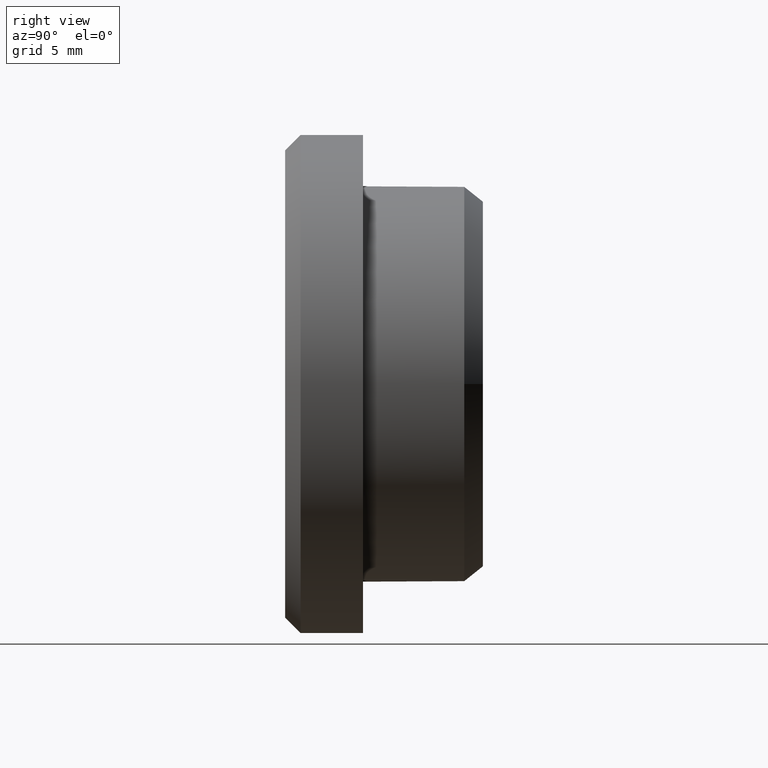
[diagram: clean part render]
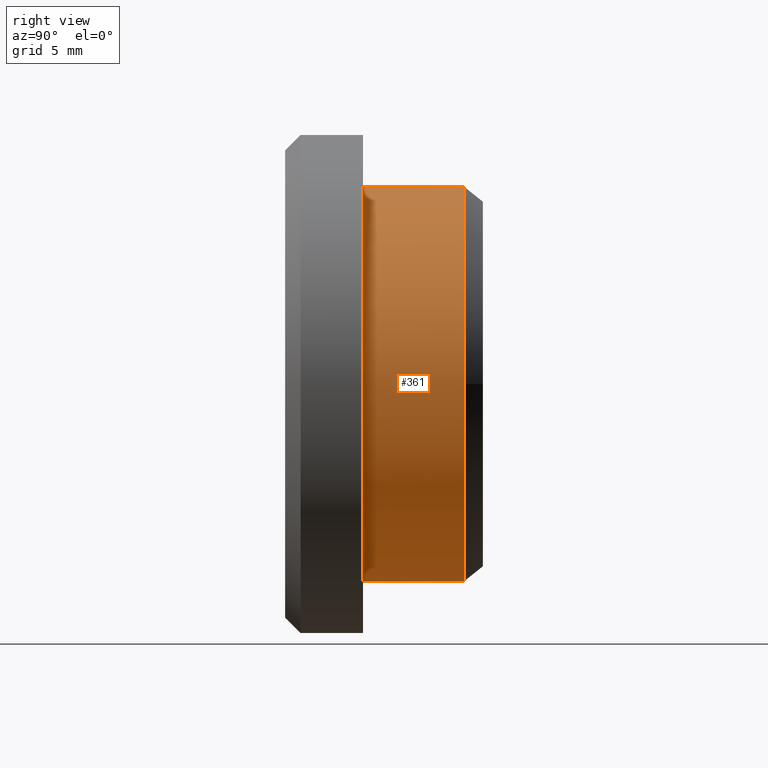
[diagram: same view with one face highlighted and labeled with its STEP entity id]
A machine part, right view. The second image highlights one B-rep face of the part: STEP entity #361.
In plain terms, the highlighted cylindrical surface (bore or boss wall) has radius 12.7 mm, axis along (-0, 1, 0).
Its self-contained STEP definition (entity closure, byte-faithful):
#42 = VERTEX_POINT ( 'NONE', #236 ) ;
#50 = CYLINDRICAL_SURFACE ( 'NONE', #266, 12.69999999999999929 ) ;
#79 = CIRCLE ( 'NONE', #85, 12.69999999999999929 ) ;
#80 = CARTESIAN_POINT ( 'NONE',  ( 1.707404996040190150E-16, -12.40000000000007674, 0.000000000000000000 ) ) ;
#85 = AXIS2_PLACEMENT_3D ( 'NONE', #110, #200, #288 ) ;
#94 = EDGE_LOOP ( 'NONE', ( #149 ) ) ;
#96 = DIRECTION ( 'NONE',  ( -1.000000000000000000, 0.000000000000000000, 0.000000000000000000 ) ) ;
#110 = CARTESIAN_POINT ( 'NONE',  ( -2.219626494852238640E-16, -0.8999999999999286349, 0.000000000000000000 ) ) ;
#125 = CARTESIAN_POINT ( 'NONE',  ( -6.259272319258516522E-31, -7.399999999999984368, 0.000000000000000000 ) ) ;
#138 = DIRECTION ( 'NONE',  ( -1.000000000000000000, 0.000000000000000000, 0.000000000000000000 ) ) ;
#148 = EDGE_CURVE ( 'NONE', #42, #42, #165, .T. ) ;
#149 = ORIENTED_EDGE ( 'NONE', *, *, #148, .T. ) ;
#162 = DIRECTION ( 'NONE',  ( -3.414809992080329023E-17, 1.000000000000000000, 0.000000000000000000 ) ) ;
#164 = FACE_OUTER_BOUND ( 'NONE', #232, .T. ) ;
#165 = CIRCLE ( 'NONE', #317, 12.69999999999999929 ) ;
#199 = ORIENTED_EDGE ( 'NONE', *, *, #340, .T. ) ;
#200 = DIRECTION ( 'NONE',  ( 3.414809992080329023E-17, -1.000000000000000000, -0.000000000000000000 ) ) ;
#232 = EDGE_LOOP ( 'NONE', ( #199 ) ) ;
#236 = CARTESIAN_POINT ( 'NONE',  ( -12.69999999999999929, -7.399999999999984368, 0.000000000000000000 ) ) ;
#241 = DIRECTION ( 'NONE',  ( -3.414809992080329023E-17, 1.000000000000000000, 0.000000000000000000 ) ) ;
#258 = FACE_OUTER_BOUND ( 'NONE', #94, .T. ) ;
#266 = AXIS2_PLACEMENT_3D ( 'NONE', #80, #162, #138 ) ;
#274 = CARTESIAN_POINT ( 'NONE',  ( -12.69999999999999929, -0.8999999999999290790, 0.000000000000000000 ) ) ;
#276 = VERTEX_POINT ( 'NONE', #274 ) ;
#288 = DIRECTION ( 'NONE',  ( -1.000000000000000000, -3.414809992080329023E-17, 0.000000000000000000 ) ) ;
#317 = AXIS2_PLACEMENT_3D ( 'NONE', #125, #241, #96 ) ;
#340 = EDGE_CURVE ( 'NONE', #276, #276, #79, .T. ) ;
#361 = ADVANCED_FACE ( 'NONE', ( #164, #258 ), #50, .T. ) ;